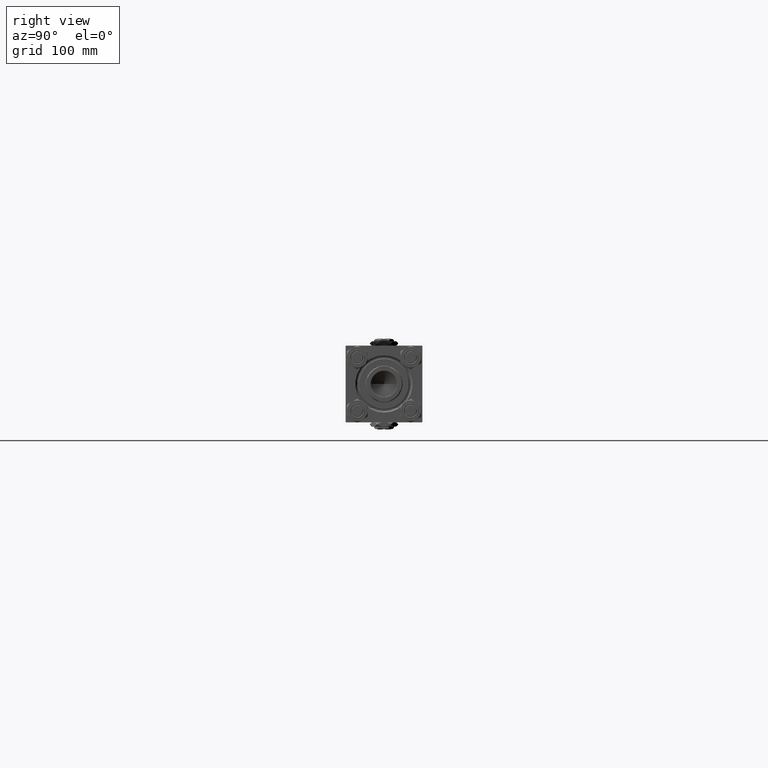
[diagram: clean part render]
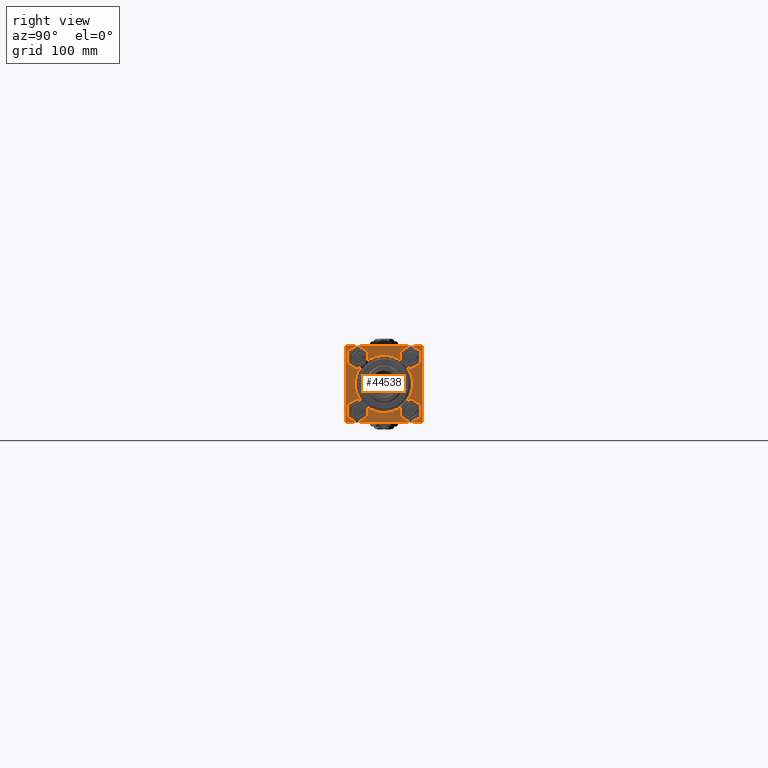
[diagram: same view with one face highlighted and labeled with its STEP entity id]
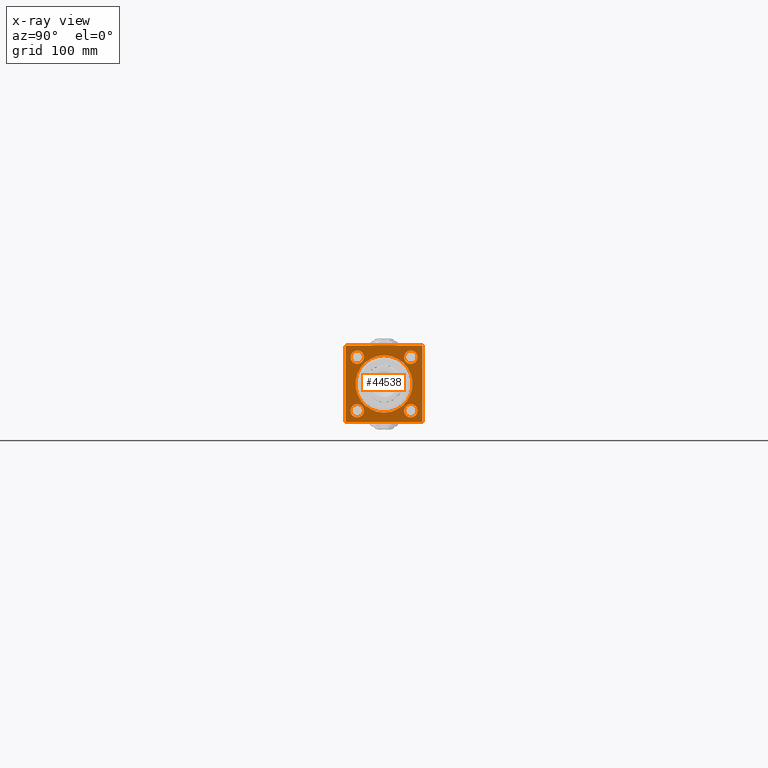
[diagram: x-ray of the same camera — body ghosted, the highlighted face saturated]
A machine part, right view. The second image highlights one B-rep face of the part: STEP entity #44538.
The next image is the same camera in x-ray: the body ghosted, the highlighted face saturated — about 0% of this face is hidden behind the body in this view.
In plain terms, the highlighted planar face has unit normal (-1, 0, 0).
Its self-contained STEP definition (entity closure, byte-faithful):
#9 = DIRECTION ( 'NONE',  ( -1.000000000000000000, -0.000000000000000000, 0.000000000000000000 ) ) ;
#233 = ORIENTED_EDGE ( 'NONE', *, *, #396, .F. ) ;
#396 = EDGE_CURVE ( 'NONE', #44619, #5284, #37160, .T. ) ;
#911 = ORIENTED_EDGE ( 'NONE', *, *, #49170, .T. ) ;
#1391 = VERTEX_POINT ( 'NONE', #28584 ) ;
#1769 = DIRECTION ( 'NONE',  ( -0.000000000000000000, -0.7071067811865081598, -0.7071067811865867636 ) ) ;
#2409 = AXIS2_PLACEMENT_3D ( 'NONE', #46866, #14661, #14916 ) ;
#2639 = EDGE_CURVE ( 'NONE', #42897, #8917, #15629, .T. ) ;
#3119 = EDGE_CURVE ( 'NONE', #8917, #42897, #24826, .T. ) ;
#3199 = CIRCLE ( 'NONE', #45826, 6.500000000000057732 ) ;
#3447 = CIRCLE ( 'NONE', #46912, 6.500000000000057732 ) ;
#3584 = AXIS2_PLACEMENT_3D ( 'NONE', #45237, #16962, #37134 ) ;
#3598 = DIRECTION ( 'NONE',  ( 0.000000000000000000, 0.000000000000000000, 1.000000000000000000 ) ) ;
#3640 = CARTESIAN_POINT ( 'NONE',  ( 634.0000000000001137, 36.99999999999994316, 37.49999999999999289 ) ) ;
#3738 = VERTEX_POINT ( 'NONE', #32434 ) ;
#4405 = CARTESIAN_POINT ( 'NONE',  ( 634.0000000000001137, 37.50000000000000000, -36.99999999999993605 ) ) ;
#4805 = FACE_BOUND ( 'NONE', #16658, .T. ) ;
#4884 = VECTOR ( 'NONE', #32306, 1000.000000000000000 ) ;
#5041 = CARTESIAN_POINT ( 'NONE',  ( 634.0000000000001137, 36.99999999999994316, 37.49999999999999289 ) ) ;
#5284 = VERTEX_POINT ( 'NONE', #28328 ) ;
#5567 = VERTEX_POINT ( 'NONE', #51580 ) ;
#5653 = CARTESIAN_POINT ( 'NONE',  ( 634.0000000000001137, 26.14999999999999858, -26.15000000000000213 ) ) ;
#5854 = ORIENTED_EDGE ( 'NONE', *, *, #44642, .T. ) ;
#5909 = CARTESIAN_POINT ( 'NONE',  ( 634.0000000000001137, 26.14999999999999858, 32.65000000000006963 ) ) ;
#6031 = EDGE_CURVE ( 'NONE', #5567, #29247, #10998, .T. ) ;
#6076 = CARTESIAN_POINT ( 'NONE',  ( 634.0000000000001137, 37.50000000000000000, 36.99999999999999289 ) ) ;
#6722 = ORIENTED_EDGE ( 'NONE', *, *, #27629, .T. ) ;
#6957 = DIRECTION ( 'NONE',  ( 0.000000000000000000, -9.251858538542972814E-17, -1.000000000000000000 ) ) ;
#7602 = CARTESIAN_POINT ( 'NONE',  ( 634.0000000000001137, 26.14999999999999858, 26.15000000000000213 ) ) ;
#8187 = DIRECTION ( 'NONE',  ( 0.000000000000000000, 0.000000000000000000, -1.000000000000000000 ) ) ;
#8211 = DIRECTION ( 'NONE',  ( 0.000000000000000000, 0.000000000000000000, 1.000000000000000000 ) ) ;
#8237 = DIRECTION ( 'NONE',  ( -1.000000000000000000, -0.000000000000000000, 0.000000000000000000 ) ) ;
#8917 = VERTEX_POINT ( 'NONE', #36126 ) ;
#9237 = FACE_BOUND ( 'NONE', #26527, .T. ) ;
#9357 = VERTEX_POINT ( 'NONE', #5041 ) ;
#9504 = EDGE_CURVE ( 'NONE', #9357, #15521, #11542, .T. ) ;
#9769 = AXIS2_PLACEMENT_3D ( 'NONE', #28469, #39465, #3598 ) ;
#10465 = CARTESIAN_POINT ( 'NONE',  ( 634.0000000000001137, 37.50000000000000000, -37.50000000000000000 ) ) ;
#10523 = EDGE_CURVE ( 'NONE', #12725, #25244, #34804, .T. ) ;
#10998 = CIRCLE ( 'NONE', #21013, 6.500000000000057732 ) ;
#11040 = CIRCLE ( 'NONE', #40290, 6.500000000000057732 ) ;
#11542 = LINE ( 'NONE', #47150, #13586 ) ;
#11819 = EDGE_CURVE ( 'NONE', #41410, #13237, #43586, .T. ) ;
#12055 = EDGE_LOOP ( 'NONE', ( #34736, #44181 ) ) ;
#12085 = CARTESIAN_POINT ( 'NONE',  ( 634.0000000000001137, -37.50000000000000000, 36.99999999999992184 ) ) ;
#12725 = VERTEX_POINT ( 'NONE', #38635 ) ;
#13237 = VERTEX_POINT ( 'NONE', #17570 ) ;
#13586 = VECTOR ( 'NONE', #19111, 1000.000000000000000 ) ;
#13622 = VECTOR ( 'NONE', #49738, 1000.000000000000000 ) ;
#13677 = CIRCLE ( 'NONE', #48005, 27.99999999999996803 ) ;
#14661 = DIRECTION ( 'NONE',  ( -1.000000000000000000, -0.000000000000000000, 0.000000000000000000 ) ) ;
#14916 = DIRECTION ( 'NONE',  ( 0.000000000000000000, 0.000000000000000000, 1.000000000000000000 ) ) ;
#15521 = VERTEX_POINT ( 'NONE', #49418 ) ;
#15608 = ORIENTED_EDGE ( 'NONE', *, *, #10523, .F. ) ;
#15629 = CIRCLE ( 'NONE', #9769, 6.500000000000057732 ) ;
#15835 = DIRECTION ( 'NONE',  ( 0.000000000000000000, 0.000000000000000000, 1.000000000000000000 ) ) ;
#15906 = ORIENTED_EDGE ( 'NONE', *, *, #45017, .T. ) ;
#16192 = LINE ( 'NONE', #3640, #42244 ) ;
#16293 = EDGE_CURVE ( 'NONE', #44619, #9357, #16192, .T. ) ;
#16302 = ORIENTED_EDGE ( 'NONE', *, *, #9504, .T. ) ;
#16317 = FACE_OUTER_BOUND ( 'NONE', #17885, .T. ) ;
#16658 = EDGE_LOOP ( 'NONE', ( #24359, #6722 ) ) ;
#16962 = DIRECTION ( 'NONE',  ( -1.000000000000000000, -0.000000000000000000, 0.000000000000000000 ) ) ;
#17052 = ORIENTED_EDGE ( 'NONE', *, *, #30332, .T. ) ;
#17570 = CARTESIAN_POINT ( 'NONE',  ( 634.0000000000001137, -37.50000000000000711, -37.00000000000000711 ) ) ;
#17885 = EDGE_LOOP ( 'NONE', ( #30207, #44166, #15608, #33929, #233, #44365, #16302, #15906 ) ) ;
#18624 = CIRCLE ( 'NONE', #3584, 6.500000000000057732 ) ;
#19036 = CARTESIAN_POINT ( 'NONE',  ( 634.0000000000001137, -26.14999999999999147, 32.65000000000007674 ) ) ;
#19111 = DIRECTION ( 'NONE',  ( 0.000000000000000000, -1.000000000000000000, -1.850371707708594316E-16 ) ) ;
#19477 = ORIENTED_EDGE ( 'NONE', *, *, #6031, .T. ) ;
#19591 = DIRECTION ( 'NONE',  ( 0.000000000000000000, -0.7071067811865867636, 0.7071067811865081598 ) ) ;
#21013 = AXIS2_PLACEMENT_3D ( 'NONE', #5653, #31737, #30514 ) ;
#21124 = ORIENTED_EDGE ( 'NONE', *, *, #28638, .T. ) ;
#21552 = DIRECTION ( 'NONE',  ( 0.000000000000000000, 0.000000000000000000, 1.000000000000000000 ) ) ;
#24052 = DIRECTION ( 'NONE',  ( 0.000000000000000000, 0.000000000000000000, 1.000000000000000000 ) ) ;
#24141 = CARTESIAN_POINT ( 'NONE',  ( 634.0000000000001137, 37.50000000000000000, 37.49999999999999289 ) ) ;
#24294 = LINE ( 'NONE', #4405, #25144 ) ;
#24359 = ORIENTED_EDGE ( 'NONE', *, *, #50661, .T. ) ;
#24826 = CIRCLE ( 'NONE', #36610, 6.500000000000057732 ) ;
#25144 = VECTOR ( 'NONE', #39740, 1000.000000000000000 ) ;
#25244 = VERTEX_POINT ( 'NONE', #31039 ) ;
#25465 = DIRECTION ( 'NONE',  ( -1.000000000000000000, -0.000000000000000000, 0.000000000000000000 ) ) ;
#25488 = DIRECTION ( 'NONE',  ( -1.000000000000000000, -0.000000000000000000, 0.000000000000000000 ) ) ;
#26214 = DIRECTION ( 'NONE',  ( -1.000000000000000000, -0.000000000000000000, 0.000000000000000000 ) ) ;
#26527 = EDGE_LOOP ( 'NONE', ( #5854, #17052 ) ) ;
#26835 = CARTESIAN_POINT ( 'NONE',  ( 634.0000000000001137, -37.50000000000000000, 37.49999999999997868 ) ) ;
#27157 = VECTOR ( 'NONE', #8187, 1000.000000000000000 ) ;
#27629 = EDGE_CURVE ( 'NONE', #36402, #30996, #40820, .T. ) ;
#27866 = CARTESIAN_POINT ( 'NONE',  ( 634.0000000000001137, 0.000000000000000000, 0.000000000000000000 ) ) ;
#28328 = CARTESIAN_POINT ( 'NONE',  ( 634.0000000000001137, 37.50000000000000000, -36.99999999999993605 ) ) ;
#28469 = CARTESIAN_POINT ( 'NONE',  ( 634.0000000000001137, -26.14999999999999147, 26.15000000000000924 ) ) ;
#28584 = CARTESIAN_POINT ( 'NONE',  ( 634.0000000000001137, -26.14999999999999147, -32.65000000000006963 ) ) ;
#28628 = FACE_BOUND ( 'NONE', #29654, .T. ) ;
#28638 = EDGE_CURVE ( 'NONE', #29247, #5567, #45039, .T. ) ;
#28883 = FACE_BOUND ( 'NONE', #47653, .T. ) ;
#29198 = VERTEX_POINT ( 'NONE', #5909 ) ;
#29247 = VERTEX_POINT ( 'NONE', #30505 ) ;
#29654 = EDGE_LOOP ( 'NONE', ( #43902, #911 ) ) ;
#30207 = ORIENTED_EDGE ( 'NONE', *, *, #11819, .T. ) ;
#30217 = CARTESIAN_POINT ( 'NONE',  ( 634.0000000000001137, 3.429011037612585332E-15, 27.99999999999996803 ) ) ;
#30332 = EDGE_CURVE ( 'NONE', #49442, #1391, #3199, .T. ) ;
#30505 = CARTESIAN_POINT ( 'NONE',  ( 634.0000000000001137, 26.14999999999999858, -32.65000000000006253 ) ) ;
#30514 = DIRECTION ( 'NONE',  ( 0.000000000000000000, 0.000000000000000000, 1.000000000000000000 ) ) ;
#30943 = CARTESIAN_POINT ( 'NONE',  ( 634.0000000000001137, -37.50000000000000000, 36.99999999999992184 ) ) ;
#30996 = VERTEX_POINT ( 'NONE', #41076 ) ;
#31039 = CARTESIAN_POINT ( 'NONE',  ( 634.0000000000001137, -36.99999999999995737, -37.50000000000000000 ) ) ;
#31737 = DIRECTION ( 'NONE',  ( -1.000000000000000000, -0.000000000000000000, 0.000000000000000000 ) ) ;
#32300 = DIRECTION ( 'NONE',  ( -1.000000000000000000, -0.000000000000000000, 0.000000000000000000 ) ) ;
#32306 = DIRECTION ( 'NONE',  ( 0.000000000000000000, 0.7071067811865867636, -0.7071067811865081598 ) ) ;
#32434 = CARTESIAN_POINT ( 'NONE',  ( 634.0000000000001137, 26.14999999999999858, 19.64999999999994174 ) ) ;
#32502 = AXIS2_PLACEMENT_3D ( 'NONE', #33328, #25465, #24052 ) ;
#32555 = FACE_BOUND ( 'NONE', #12055, .T. ) ;
#32561 = CARTESIAN_POINT ( 'NONE',  ( 634.0000000000001137, -36.99999999999995737, -37.50000000000000000 ) ) ;
#33328 = CARTESIAN_POINT ( 'NONE',  ( 634.0000000000001137, 0.000000000000000000, 0.000000000000000000 ) ) ;
#33647 = EDGE_CURVE ( 'NONE', #13237, #25244, #44847, .T. ) ;
#33929 = ORIENTED_EDGE ( 'NONE', *, *, #43766, .T. ) ;
#34736 = ORIENTED_EDGE ( 'NONE', *, *, #3119, .T. ) ;
#34804 = LINE ( 'NONE', #10465, #13622 ) ;
#36126 = CARTESIAN_POINT ( 'NONE',  ( 634.0000000000001137, -26.14999999999999147, 19.64999999999994884 ) ) ;
#36402 = VERTEX_POINT ( 'NONE', #30217 ) ;
#36610 = AXIS2_PLACEMENT_3D ( 'NONE', #49069, #25488, #21552 ) ;
#37134 = DIRECTION ( 'NONE',  ( 0.000000000000000000, 0.000000000000000000, 1.000000000000000000 ) ) ;
#37160 = LINE ( 'NONE', #24141, #27157 ) ;
#38635 = CARTESIAN_POINT ( 'NONE',  ( 634.0000000000001137, 37.00000000000000000, -37.50000000000000000 ) ) ;
#39465 = DIRECTION ( 'NONE',  ( -1.000000000000000000, -0.000000000000000000, 0.000000000000000000 ) ) ;
#39740 = DIRECTION ( 'NONE',  ( -0.000000000000000000, 0.7071067811865033859, 0.7071067811865916486 ) ) ;
#39914 = CARTESIAN_POINT ( 'NONE',  ( 634.0000000000001137, -26.14999999999999147, -26.15000000000000924 ) ) ;
#40290 = AXIS2_PLACEMENT_3D ( 'NONE', #7602, #9, #43461 ) ;
#40820 = CIRCLE ( 'NONE', #32502, 27.99999999999996803 ) ;
#41066 = VECTOR ( 'NONE', #1769, 1000.000000000000000 ) ;
#41076 = CARTESIAN_POINT ( 'NONE',  ( 634.0000000000001137, 0.000000000000000000, -27.99999999999996803 ) ) ;
#41410 = VERTEX_POINT ( 'NONE', #30943 ) ;
#41668 = CARTESIAN_POINT ( 'NONE',  ( 634.0000000000001137, -26.14999999999999147, -26.15000000000000924 ) ) ;
#42244 = VECTOR ( 'NONE', #19591, 1000.000000000000000 ) ;
#42897 = VERTEX_POINT ( 'NONE', #19036 ) ;
#43327 = DIRECTION ( 'NONE',  ( -1.000000000000000000, -0.000000000000000000, 0.000000000000000000 ) ) ;
#43461 = DIRECTION ( 'NONE',  ( 0.000000000000000000, 0.000000000000000000, 1.000000000000000000 ) ) ;
#43586 = LINE ( 'NONE', #26835, #44609 ) ;
#43766 = EDGE_CURVE ( 'NONE', #12725, #5284, #24294, .T. ) ;
#43893 = CARTESIAN_POINT ( 'NONE',  ( 634.0000000000001137, -26.14999999999999147, -19.64999999999995239 ) ) ;
#43902 = ORIENTED_EDGE ( 'NONE', *, *, #47428, .T. ) ;
#44166 = ORIENTED_EDGE ( 'NONE', *, *, #33647, .T. ) ;
#44181 = ORIENTED_EDGE ( 'NONE', *, *, #2639, .T. ) ;
#44333 = PLANE ( 'NONE',  #49416 ) ;
#44365 = ORIENTED_EDGE ( 'NONE', *, *, #16293, .T. ) ;
#44538 = ADVANCED_FACE ( 'NONE', ( #9237, #28883, #28628, #32555, #4805, #16317 ), #44333, .F. ) ;
#44609 = VECTOR ( 'NONE', #6957, 1000.000000000000000 ) ;
#44619 = VERTEX_POINT ( 'NONE', #6076 ) ;
#44642 = EDGE_CURVE ( 'NONE', #1391, #49442, #3447, .T. ) ;
#44842 = CARTESIAN_POINT ( 'NONE',  ( 634.0000000000001137, 0.000000000000000000, 0.000000000000000000 ) ) ;
#44847 = LINE ( 'NONE', #32561, #4884 ) ;
#45017 = EDGE_CURVE ( 'NONE', #15521, #41410, #49153, .T. ) ;
#45039 = CIRCLE ( 'NONE', #2409, 6.500000000000057732 ) ;
#45237 = CARTESIAN_POINT ( 'NONE',  ( 634.0000000000001137, 26.14999999999999858, 26.15000000000000213 ) ) ;
#45604 = DIRECTION ( 'NONE',  ( 0.000000000000000000, 0.000000000000000000, 1.000000000000000000 ) ) ;
#45826 = AXIS2_PLACEMENT_3D ( 'NONE', #39914, #43327, #15835 ) ;
#46866 = CARTESIAN_POINT ( 'NONE',  ( 634.0000000000001137, 26.14999999999999858, -26.15000000000000213 ) ) ;
#46912 = AXIS2_PLACEMENT_3D ( 'NONE', #41668, #26214, #45604 ) ;
#47150 = CARTESIAN_POINT ( 'NONE',  ( 634.0000000000001137, 37.50000000000000000, 37.49999999999999289 ) ) ;
#47428 = EDGE_CURVE ( 'NONE', #3738, #29198, #11040, .T. ) ;
#47653 = EDGE_LOOP ( 'NONE', ( #21124, #19477 ) ) ;
#48005 = AXIS2_PLACEMENT_3D ( 'NONE', #27866, #8237, #48297 ) ;
#48297 = DIRECTION ( 'NONE',  ( 0.000000000000000000, 0.000000000000000000, 1.000000000000000000 ) ) ;
#49069 = CARTESIAN_POINT ( 'NONE',  ( 634.0000000000001137, -26.14999999999999147, 26.15000000000000924 ) ) ;
#49153 = LINE ( 'NONE', #12085, #41066 ) ;
#49170 = EDGE_CURVE ( 'NONE', #29198, #3738, #18624, .T. ) ;
#49416 = AXIS2_PLACEMENT_3D ( 'NONE', #44842, #32300, #8211 ) ;
#49418 = CARTESIAN_POINT ( 'NONE',  ( 634.0000000000001137, -37.00000000000000000, 37.49999999999997868 ) ) ;
#49442 = VERTEX_POINT ( 'NONE', #43893 ) ;
#49738 = DIRECTION ( 'NONE',  ( 0.000000000000000000, -1.000000000000000000, 0.000000000000000000 ) ) ;
#50661 = EDGE_CURVE ( 'NONE', #30996, #36402, #13677, .T. ) ;
#51580 = CARTESIAN_POINT ( 'NONE',  ( 634.0000000000001137, 26.14999999999999858, -19.64999999999994529 ) ) ;